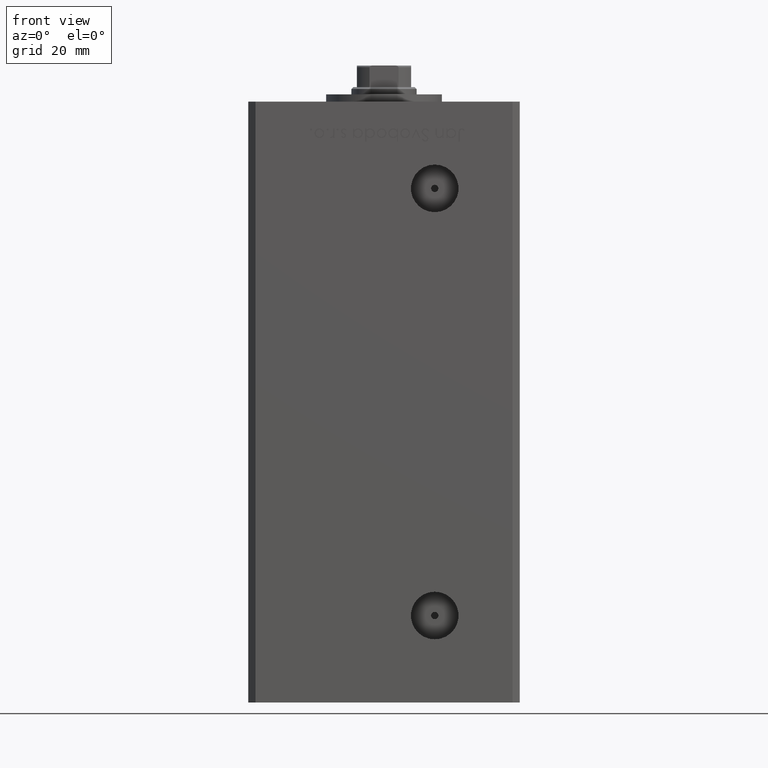
[diagram: clean part render]
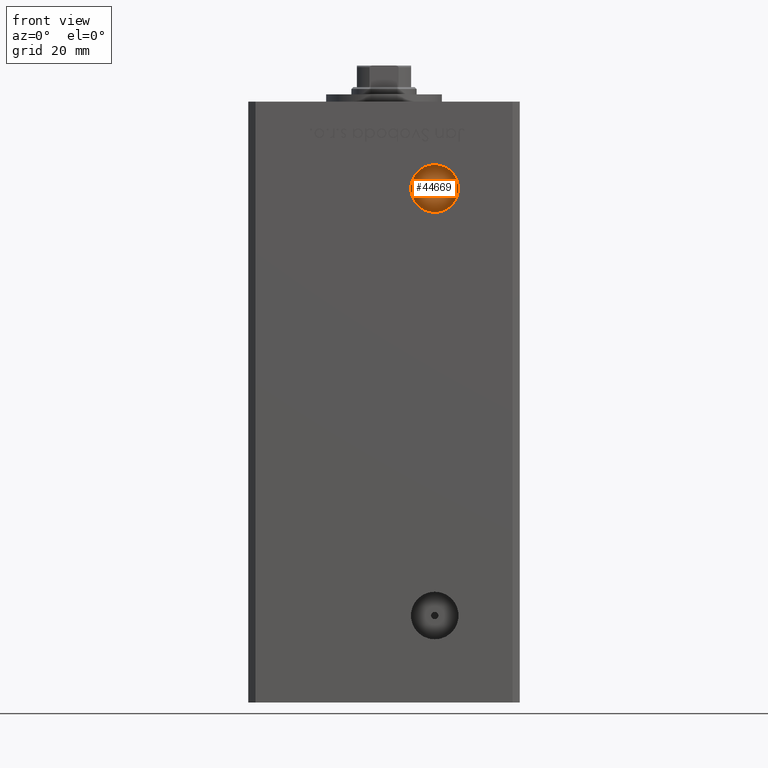
[diagram: same view with one face highlighted and labeled with its STEP entity id]
A machine part, front view. The second image highlights one B-rep face of the part: STEP entity #44669.
In plain terms, the highlighted planar face has unit normal (0, -1, 0).
Its self-contained STEP definition (entity closure, byte-faithful):
#261 = ORIENTED_EDGE ( 'NONE', *, *, #26462, .F. ) ;
#1128 = EDGE_CURVE ( 'NONE', #15254, #39918, #22197, .T. ) ;
#2125 = DIRECTION ( 'NONE',  ( 0.000000000000000000, 0.000000000000000000, -1.000000000000000000 ) ) ;
#3007 = CARTESIAN_POINT ( 'NONE',  ( 13.99999999999999112, -19.50000000000000355, 128.0000000000000000 ) ) ;
#5267 = CARTESIAN_POINT ( 'NONE',  ( 13.99999999999999112, -19.50000000000000355, 127.0000000000000000 ) ) ;
#6735 = DIRECTION ( 'NONE',  ( 0.000000000000000000, 0.000000000000000000, -1.000000000000000000 ) ) ;
#7202 = ORIENTED_EDGE ( 'NONE', *, *, #25375, .F. ) ;
#7438 = DIRECTION ( 'NONE',  ( 0.000000000000000000, 0.000000000000000000, -1.000000000000000000 ) ) ;
#8016 = AXIS2_PLACEMENT_3D ( 'NONE', #45641, #25886, #2125 ) ;
#9570 = DIRECTION ( 'NONE',  ( 0.000000000000000000, -0.000000000000000000, -1.000000000000000000 ) ) ;
#10987 = AXIS2_PLACEMENT_3D ( 'NONE', #37814, #45705, #9570 ) ;
#11394 = DIRECTION ( 'NONE',  ( -0.000000000000000000, 1.000000000000000000, -0.000000000000000000 ) ) ;
#11607 = EDGE_LOOP ( 'NONE', ( #7202, #261 ) ) ;
#13588 = CARTESIAN_POINT ( 'NONE',  ( 13.99999999999999112, -19.50000000000000355, 133.5800000000000125 ) ) ;
#15254 = VERTEX_POINT ( 'NONE', #24293 ) ;
#16669 = VERTEX_POINT ( 'NONE', #13588 ) ;
#17324 = CIRCLE ( 'NONE', #44276, 6.580000000000002736 ) ;
#17739 = ORIENTED_EDGE ( 'NONE', *, *, #32644, .F. ) ;
#18084 = ORIENTED_EDGE ( 'NONE', *, *, #1128, .F. ) ;
#22197 = CIRCLE ( 'NONE', #39852, 1.000000000000000888 ) ;
#24293 = CARTESIAN_POINT ( 'NONE',  ( 13.99999999999999112, -19.50000000000000355, 126.0000000000000000 ) ) ;
#25375 = EDGE_CURVE ( 'NONE', #30366, #16669, #38382, .T. ) ;
#25886 = DIRECTION ( 'NONE',  ( -0.000000000000000000, 1.000000000000000000, -0.000000000000000000 ) ) ;
#26272 = DIRECTION ( 'NONE',  ( 0.000000000000000000, -1.000000000000000000, 0.000000000000000000 ) ) ;
#26462 = EDGE_CURVE ( 'NONE', #16669, #30366, #17324, .T. ) ;
#29120 = FACE_BOUND ( 'NONE', #38139, .T. ) ;
#30067 = DIRECTION ( 'NONE',  ( 0.000000000000000000, 0.000000000000000000, -1.000000000000000000 ) ) ;
#30169 = FACE_OUTER_BOUND ( 'NONE', #11607, .T. ) ;
#30366 = VERTEX_POINT ( 'NONE', #52113 ) ;
#30763 = CARTESIAN_POINT ( 'NONE',  ( 13.99999999999999112, -19.50000000000000355, 127.0000000000000000 ) ) ;
#32644 = EDGE_CURVE ( 'NONE', #39918, #15254, #48650, .T. ) ;
#37814 = CARTESIAN_POINT ( 'NONE',  ( 0.000000000000000000, -19.50000000000000355, 0.000000000000000000 ) ) ;
#38139 = EDGE_LOOP ( 'NONE', ( #18084, #17739 ) ) ;
#38382 = CIRCLE ( 'NONE', #8016, 6.580000000000002736 ) ;
#39852 = AXIS2_PLACEMENT_3D ( 'NONE', #5267, #42164, #30067 ) ;
#39918 = VERTEX_POINT ( 'NONE', #3007 ) ;
#42164 = DIRECTION ( 'NONE',  ( 0.000000000000000000, -1.000000000000000000, 0.000000000000000000 ) ) ;
#44276 = AXIS2_PLACEMENT_3D ( 'NONE', #51254, #11394, #7438 ) ;
#44669 = ADVANCED_FACE ( 'NONE', ( #29120, #30169 ), #49690, .T. ) ;
#45641 = CARTESIAN_POINT ( 'NONE',  ( 13.99999999999999112, -19.50000000000000355, 127.0000000000000000 ) ) ;
#45705 = DIRECTION ( 'NONE',  ( 0.000000000000000000, -1.000000000000000000, 0.000000000000000000 ) ) ;
#46114 = AXIS2_PLACEMENT_3D ( 'NONE', #30763, #26272, #6735 ) ;
#48650 = CIRCLE ( 'NONE', #46114, 1.000000000000000888 ) ;
#49690 = PLANE ( 'NONE',  #10987 ) ;
#51254 = CARTESIAN_POINT ( 'NONE',  ( 13.99999999999999112, -19.50000000000000355, 127.0000000000000000 ) ) ;
#52113 = CARTESIAN_POINT ( 'NONE',  ( 13.99999999999999112, -19.50000000000000355, 120.4200000000000017 ) ) ;